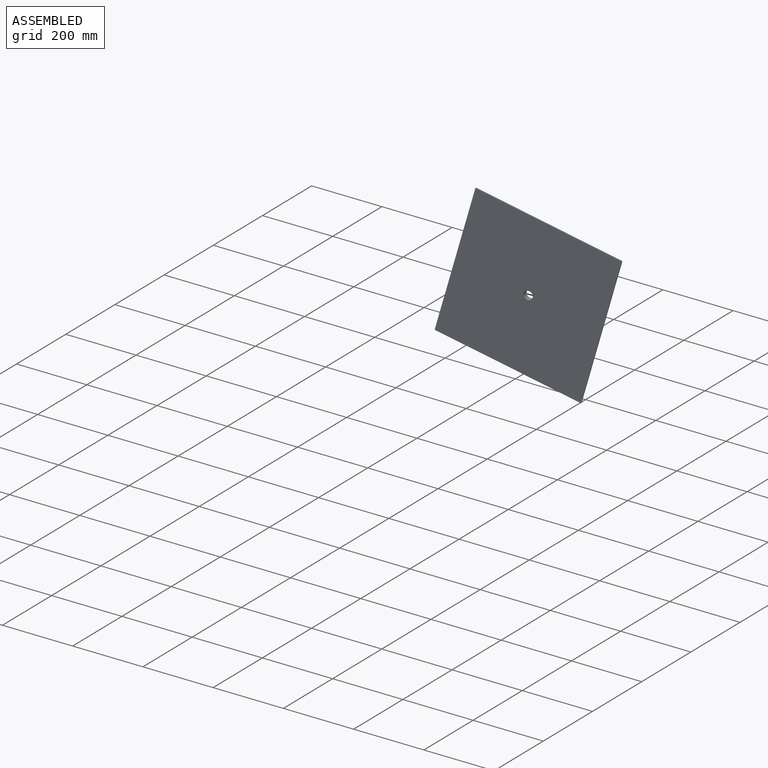
[diagram: assembled view]
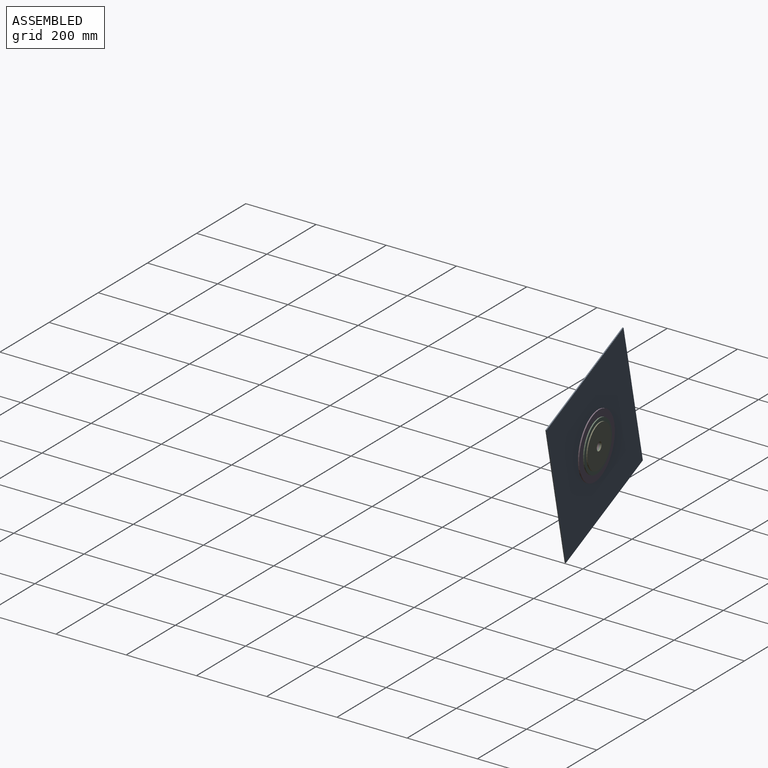
[diagram: assembled view, second angle]
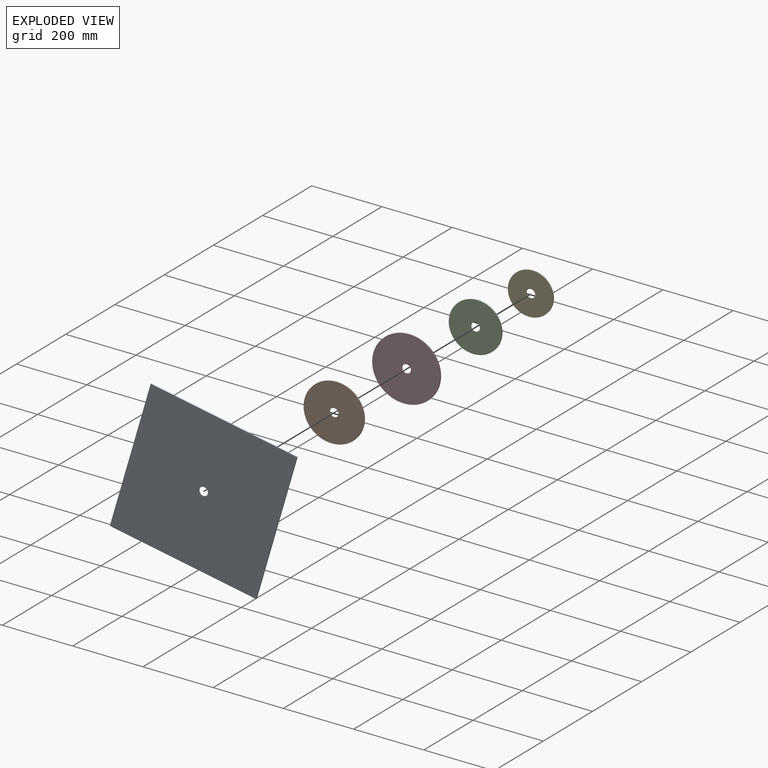
[diagram: exploded view]
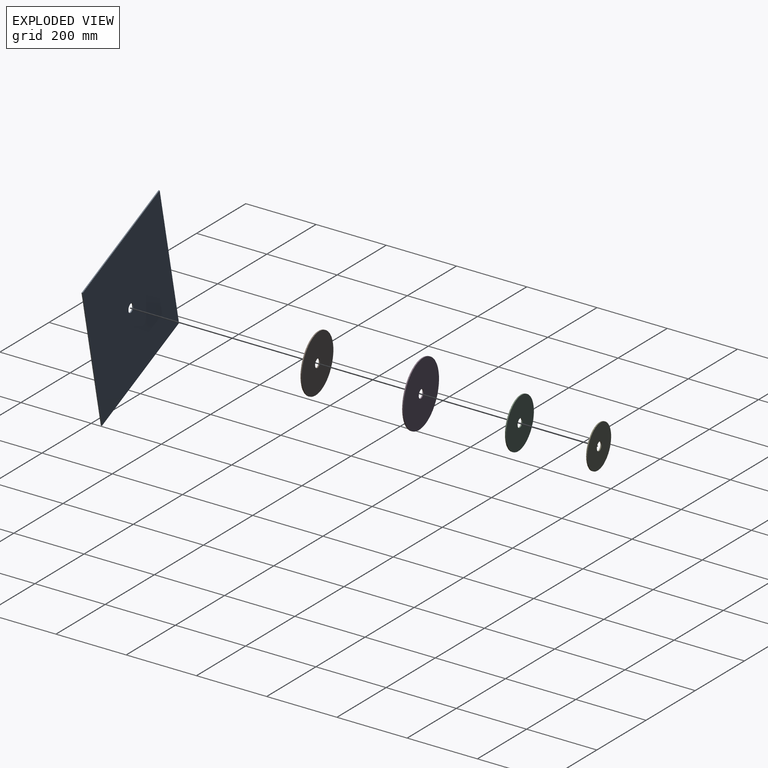
[diagram: exploded view, second angle]
ASSEMBLY  parts=5 mates=4
PART A: 7 faces, bbox 400x3x400 mm
  f0: plane 400x3mm, normal (0,0,-1), area 1200mm2, adj f1,f4,f5,f6
  f1: plane 400x3mm, normal (1,0,0), area 1200mm2, adj f0,f2,f5,f6
  f2: plane 400x3mm, normal (0,0,1), area 1200mm2, adj f1,f4,f5,f6
  f3: cylinder r=12mm len=24mm, axis (0,1,0), area 226.2mm2, adj f5,f6
  f4: plane 400x3mm, normal (-1,0,0), area 1200mm2, adj f0,f2,f5,f6
  f5: plane 400x400mm, normal (0,-1,0), area 159547.6mm2, adj f0,f1,f2,f3,f4
  f6: plane 400x400mm, normal (0,1,0), area 159547.6mm2, adj f0,f1,f2,f3,f4
PART B: 4 faces, bbox 160x3x160 mm
  f0: cylinder r=12mm len=24mm, axis (0,1,0), area 226.2mm2, adj f2,f3
  f1: cylinder r=80mm len=160mm, axis (0,1,0), area 1508mm2, adj f2,f3
  f2: plane 160x160mm, normal (0,-1,0), area 19653.8mm2, adj f0,f1
  f3: plane 160x160mm, normal (0,1,0), area 19653.8mm2, adj f0,f1
PART C: 4 faces, bbox 140x3x140 mm
  f0: cylinder r=12mm len=24mm, axis (0,1,0), area 226.2mm2, adj f2,f3
  f1: cylinder r=70mm len=140mm, axis (0,1,0), area 1319.5mm2, adj f2,f3
  f2: plane 140x140mm, normal (0,-1,0), area 14941.4mm2, adj f0,f1
  f3: plane 140x140mm, normal (0,1,0), area 14941.4mm2, adj f0,f1
PART D: 4 faces, bbox 180x3x180 mm
  f0: cylinder r=12mm len=24mm, axis (0,1,0), area 226.2mm2, adj f2,f3
  f1: cylinder r=90mm len=180mm, axis (0,1,0), area 1696.5mm2, adj f2,f3
  f2: plane 180x180mm, normal (0,-1,0), area 24994.5mm2, adj f0,f1
  f3: plane 180x180mm, normal (0,1,0), area 24994.5mm2, adj f0,f1
PART E: 4 faces, bbox 120x3x120 mm
  f0: cylinder r=12mm len=24mm, axis (0,1,0), area 226.2mm2, adj f2,f3
  f1: cylinder r=60mm len=120mm, axis (0,1,0), area 1131mm2, adj f2,f3
  f2: plane 120x120mm, normal (0,-1,0), area 10857.3mm2, adj f0,f1
  f3: plane 120x120mm, normal (0,1,0), area 10857.3mm2, adj f0,f1
PLACE A rot(axis=(-0.09,0.9,0.43),16.9deg) t=(-124.24,-253.24,-2.04)mm
PLACE B rot(axis=(-0.09,0.9,0.43),16.9deg) t=(-124.63,-250.26,-2.07)mm
PLACE C rot(axis=(-0.09,0.9,0.43),16.9deg) t=(-125.4,-244.31,-2.14)mm
PLACE D rot(axis=(-0.09,0.9,0.43),16.9deg) t=(-125.02,-247.29,-2.1)mm
PLACE E rot(axis=(-0.09,0.9,0.43),16.9deg) t=(-125.79,-241.34,-2.17)mm
MATE fastened E.f0 <-> C.f0  axis (0.13,-0.99,0.01) through (-125.4,-244.31,-2.14)mm
MATE fastened C.f1 <-> D.f0  axis (0.13,-0.99,0.01) through (-125.02,-247.29,-2.1)mm
MATE fastened B.f1 <-> A.f3  axis (0.13,-0.99,0.01) through (-124.24,-253.24,-2.04)mm
MATE fastened D.f1 <-> B.f0  axis (0.13,-0.99,0.01) through (-124.63,-250.26,-2.07)mm
